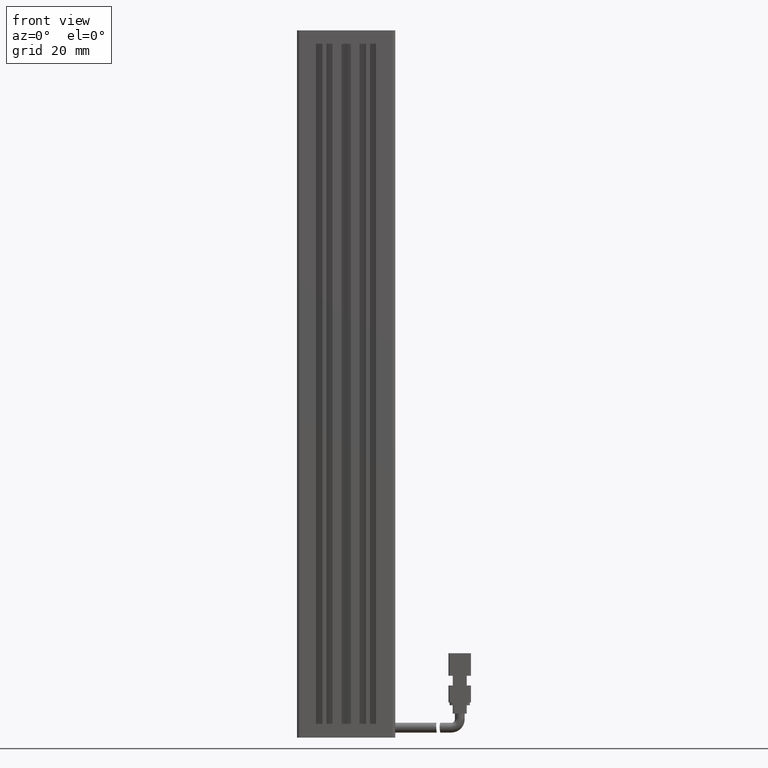
[diagram: clean part render]
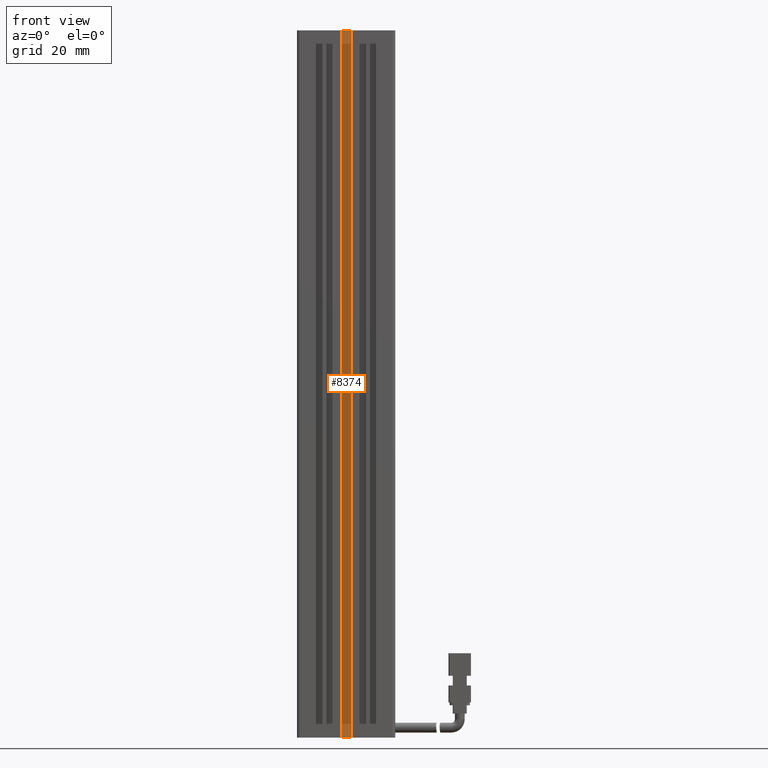
[diagram: same view with one face highlighted and labeled with its STEP entity id]
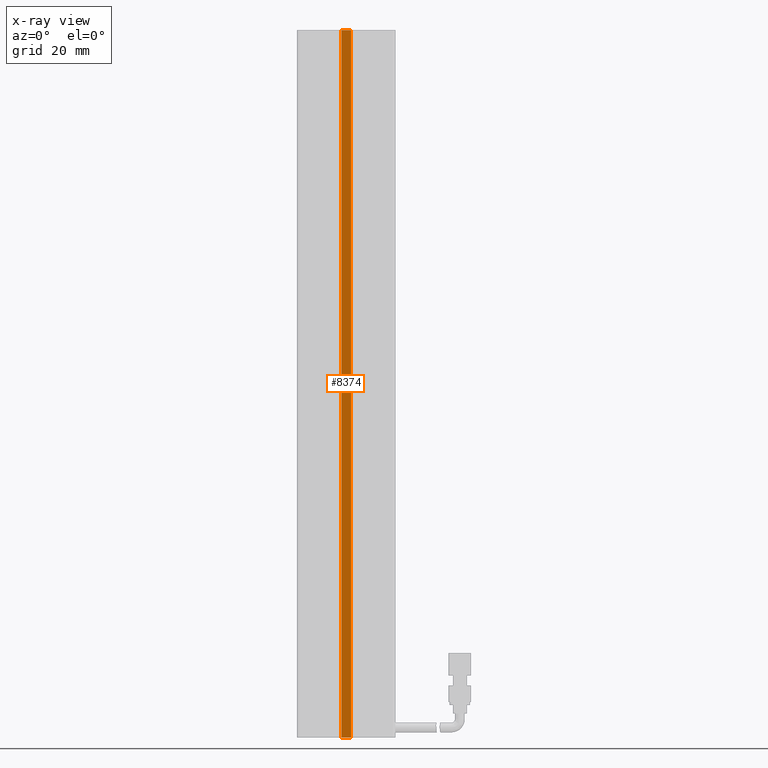
[diagram: x-ray of the same camera — body ghosted, the highlighted face saturated]
A machine part, front view. The second image highlights one B-rep face of the part: STEP entity #8374.
The next image is the same camera in x-ray: the body ghosted, the highlighted face saturated — about 0% of this face is hidden behind the body in this view.
In plain terms, the highlighted planar face has unit normal (0, 1, -0).
Its self-contained STEP definition (entity closure, byte-faithful):
#1318 = DIRECTION ( 'NONE',  ( 1.000000000000000000, 0.0000000000000000000, -0.0000000000000000000 ) ) ;
#1969 = LINE ( 'NONE', #70910, #74375 ) ;
#3047 = VERTEX_POINT ( 'NONE', #91149 ) ;
#8047 = AXIS2_PLACEMENT_3D ( 'NONE', #77728, #93374, #55257 ) ;
#8374 = ADVANCED_FACE ( 'NONE', ( #51983 ), #48383, .F. ) ;
#9580 = EDGE_LOOP ( 'NONE', ( #73862, #65432, #63632, #76855 ) ) ;
#11109 = CARTESIAN_POINT ( 'NONE',  ( 39.17537974683542500, 15.79073232304836700, 10.99999999999999600 ) ) ;
#12046 = VERTEX_POINT ( 'NONE', #11109 ) ;
#21781 = DIRECTION ( 'NONE',  ( 0.0000000000000000000, 0.0000000000000000000, 1.000000000000000000 ) ) ;
#24108 = LINE ( 'NONE', #61731, #45133 ) ;
#27623 = CARTESIAN_POINT ( 'NONE',  ( 39.17537974683542500, 15.79073232304836700, 10.99999999999999600 ) ) ;
#34999 = EDGE_CURVE ( 'NONE', #76614, #3047, #87939, .T. ) ;
#35788 = DIRECTION ( 'NONE',  ( -0.0000000000000000000, -0.0000000000000000000, -1.000000000000000000 ) ) ;
#36699 = EDGE_CURVE ( 'NONE', #12046, #76614, #1969, .T. ) ;
#37711 = VECTOR ( 'NONE', #35788, 1000.000000000000000 ) ;
#43943 = CARTESIAN_POINT ( 'NONE',  ( 42.67537974683542500, 15.79073232304836700, 10.99999999999999600 ) ) ;
#45133 = VECTOR ( 'NONE', #1318, 1000.000000000000000 ) ;
#48383 = PLANE ( 'NONE',  #8047 ) ;
#49363 = EDGE_CURVE ( 'NONE', #80306, #3047, #24108, .T. ) ;
#51983 = FACE_OUTER_BOUND ( 'NONE', #9580, .T. ) ;
#53656 = VECTOR ( 'NONE', #21781, 1000.000000000000000 ) ;
#55257 = DIRECTION ( 'NONE',  ( -1.000000000000000000, 7.380418287155808400E-032, 0.0000000000000000000 ) ) ;
#61731 = CARTESIAN_POINT ( 'NONE',  ( 40.92537974683542500, 15.79073232304837000, -241.0000000000000000 ) ) ;
#61849 = CARTESIAN_POINT ( 'NONE',  ( 39.17537974683542500, 15.79073232304836700, -241.0000000000000000 ) ) ;
#63632 = ORIENTED_EDGE ( 'NONE', *, *, #84774, .F. ) ;
#63783 = DIRECTION ( 'NONE',  ( 1.000000000000000000, 0.0000000000000000000, -0.0000000000000000000 ) ) ;
#65432 = ORIENTED_EDGE ( 'NONE', *, *, #36699, .F. ) ;
#66284 = CARTESIAN_POINT ( 'NONE',  ( 42.67537974683542500, 15.79073232304836700, 10.99999999999999600 ) ) ;
#70910 = CARTESIAN_POINT ( 'NONE',  ( 40.92537974683542500, 15.79073232304836700, 10.99999999999999600 ) ) ;
#73862 = ORIENTED_EDGE ( 'NONE', *, *, #34999, .F. ) ;
#74375 = VECTOR ( 'NONE', #63783, 1000.000000000000000 ) ;
#76614 = VERTEX_POINT ( 'NONE', #66284 ) ;
#76855 = ORIENTED_EDGE ( 'NONE', *, *, #49363, .T. ) ;
#77728 = CARTESIAN_POINT ( 'NONE',  ( 40.92537974683542500, 15.79073232304836700, 10.99999999999999600 ) ) ;
#80306 = VERTEX_POINT ( 'NONE', #61849 ) ;
#84774 = EDGE_CURVE ( 'NONE', #80306, #12046, #85162, .T. ) ;
#85162 = LINE ( 'NONE', #27623, #53656 ) ;
#87939 = LINE ( 'NONE', #43943, #37711 ) ;
#91149 = CARTESIAN_POINT ( 'NONE',  ( 42.67537974683542500, 15.79073232304837000, -241.0000000000000000 ) ) ;
#93374 = DIRECTION ( 'NONE',  ( 7.380418287155808400E-032, 1.000000000000000000, -0.0000000000000000000 ) ) ;